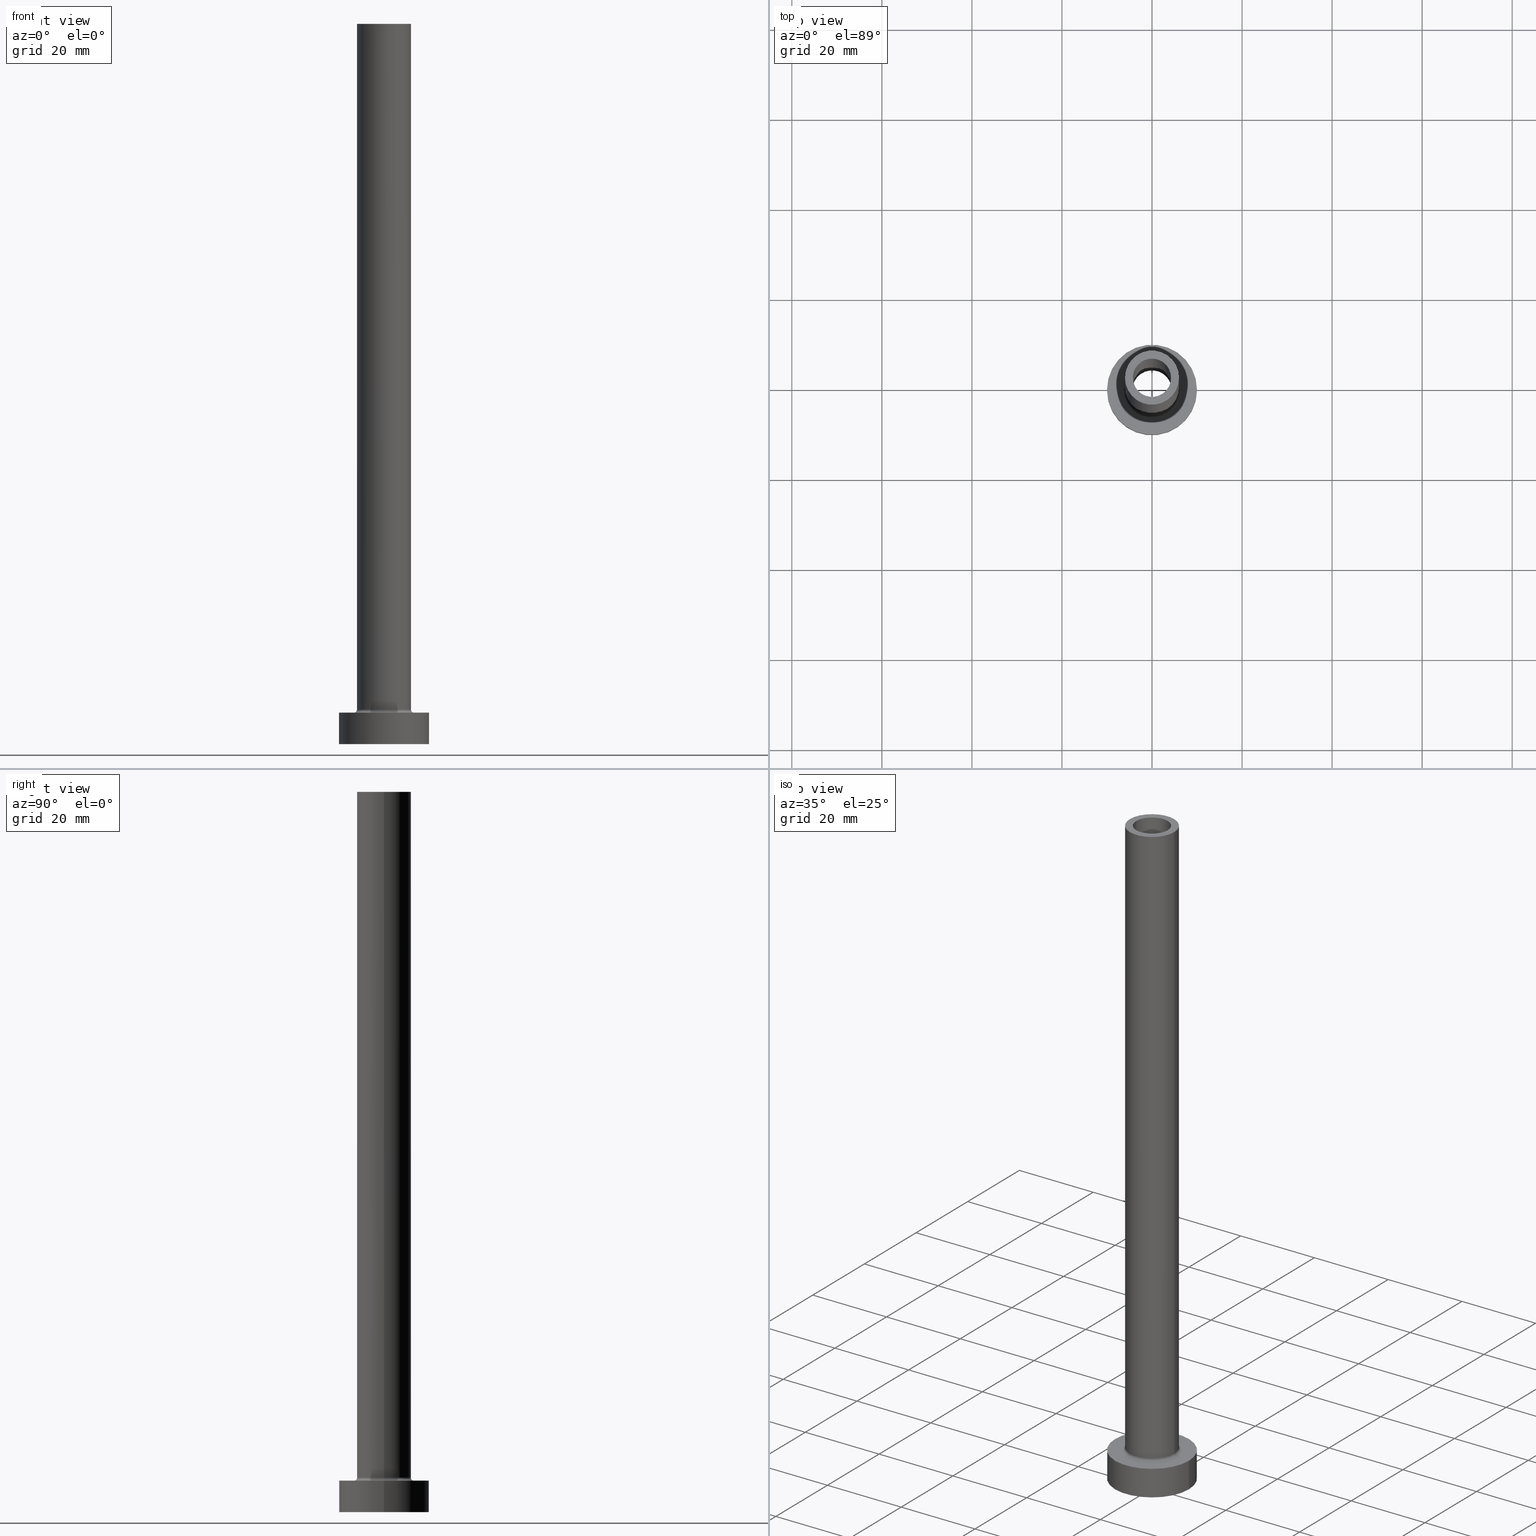
[diagram: canonical four-view strip — front | top / right | iso, engineering-drawing reading convention]
A machine part, canonical four-view strip (front | top / right | iso — engineering-drawing reading convention). The complete STEP part file that produces these views, byte-faithful:
ISO-10303-21;
HEADER;
FILE_DESCRIPTION (( 'STEP AP203' ),
    '1' );
FILE_NAME ('23bb.STEP',
    '2023-02-13T11:58:20',
    ( '' ),
    ( '' ),
    'SwSTEP 2.0',
    'SolidWorks 2019',
    '' );
FILE_SCHEMA (( 'CONFIG_CONTROL_DESIGN' ));
ENDSEC;

DATA;
#1 = DIRECTION ( 'NONE',  ( -0.000000000000000000, -0.000000000000000000, -1.000000000000000000 ) ) ;
#2 = DIRECTION ( 'NONE',  ( 1.000000000000000000, 0.000000000000000000, 0.000000000000000000 ) ) ;
#3 = CARTESIAN_POINT ( 'NONE',  ( 0.000000000000000000, 0.000000000000000000, 160.0000000000000000 ) ) ;
#4 = AXIS2_PLACEMENT_3D ( 'NONE', #316, #354, #39 ) ;
#5 = ADVANCED_FACE ( 'NONE', ( #13, #231 ), #157, .F. ) ;
#6 = CARTESIAN_POINT ( 'NONE',  ( -4.400000000000000355, 0.000000000000000000, 0.000000000000000000 ) ) ;
#7 = VERTEX_POINT ( 'NONE', #459 ) ;
#8 = DIRECTION ( 'NONE',  ( -0.000000000000000000, -0.000000000000000000, -1.000000000000000000 ) ) ;
#9 = ADVANCED_FACE ( 'NONE', ( #32 ), #175, .T. ) ;
#10 = ORIENTED_EDGE ( 'NONE', *, *, #288, .F. ) ;
#11 = ORIENTED_EDGE ( 'NONE', *, *, #288, .T. ) ;
#12 = DIRECTION ( 'NONE',  ( 0.000000000000000000, 0.000000000000000000, -1.000000000000000000 ) ) ;
#13 = FACE_BOUND ( 'NONE', #299, .T. ) ;
#14 =( NAMED_UNIT ( * ) SI_UNIT ( $, .STERADIAN. ) SOLID_ANGLE_UNIT ( ) );
#15 = VECTOR ( 'NONE', #265, 1000.000000000000000 ) ;
#16 = FACE_OUTER_BOUND ( 'NONE', #434, .T. ) ;
#17 = ADVANCED_FACE ( 'NONE', ( #284 ), #116, .T. ) ;
#18 = CARTESIAN_POINT ( 'NONE',  ( 0.000000000000000000, 0.000000000000000000, 7.000000000000000000 ) ) ;
#19 = ORIENTED_EDGE ( 'NONE', *, *, #42, .T. ) ;
#20 = ADVANCED_FACE ( 'NONE', ( #108, #396 ), #104, .T. ) ;
#21 = CARTESIAN_POINT ( 'NONE',  ( 4.400000000000000355, 5.388445916248354013E-16, 115.0000000000000000 ) ) ;
#22 = APPROVAL_ROLE ( '' ) ;
#23 = DIRECTION ( 'NONE',  ( 1.000000000000000000, 0.000000000000000000, 0.000000000000000000 ) ) ;
#24 = EDGE_CURVE ( 'NONE', #227, #41, #65, .T. ) ;
#25 = AXIS2_PLACEMENT_3D ( 'NONE', #18, #162, #307 ) ;
#26 = PERSON_AND_ORGANIZATION_ROLE ( 'classification_officer' ) ;
#27 = DIRECTION ( 'NONE',  ( 0.000000000000000000, 0.000000000000000000, -1.000000000000000000 ) ) ;
#28 = DATE_AND_TIME ( #202, #140 ) ;
#29 = AXIS2_PLACEMENT_3D ( 'NONE', #409, #368, #54 ) ;
#30 = LOCAL_TIME ( 12, 58, 20.00000000000000000, #210 ) ;
#31 = ADVANCED_FACE ( 'NONE', ( #287 ), #455, .F. ) ;
#32 = FACE_OUTER_BOUND ( 'NONE', #362, .T. ) ;
#33 = ORIENTED_EDGE ( 'NONE', *, *, #103, .T. ) ;
#34 = DIRECTION ( 'NONE',  ( -1.000000000000000000, 0.000000000000000000, 0.000000000000000000 ) ) ;
#35 = VERTEX_POINT ( 'NONE', #217 ) ;
#36 = PLANE ( 'NONE',  #130 ) ;
#37 = VERTEX_POINT ( 'NONE', #148 ) ;
#38 = EDGE_CURVE ( 'NONE', #395, #329, #199, .T. ) ;
#39 = DIRECTION ( 'NONE',  ( 1.000000000000000000, 0.000000000000000000, 0.000000000000000000 ) ) ;
#40 = EDGE_CURVE ( 'NONE', #49, #155, #358, .T. ) ;
#41 = VERTEX_POINT ( 'NONE', #423 ) ;
#42 = EDGE_CURVE ( 'NONE', #81, #7, #256, .T. ) ;
#43 = FACE_BOUND ( 'NONE', #188, .T. ) ;
#44 = ORIENTED_EDGE ( 'NONE', *, *, #259, .F. ) ;
#45 = CIRCLE ( 'NONE', #432, 10.00000000000000000 ) ;
#46 = CARTESIAN_POINT ( 'NONE',  ( 10.00000000000000000, 1.224646799147353256E-15, 7.000000000000000000 ) ) ;
#47 = CC_DESIGN_PERSON_AND_ORGANIZATION_ASSIGNMENT ( #61, #165, ( #212 ) ) ;
#48 = DIRECTION ( 'NONE',  ( -0.000000000000000000, -0.000000000000000000, -1.000000000000000000 ) ) ;
#49 = VERTEX_POINT ( 'NONE', #74 ) ;
#50 = CYLINDRICAL_SURFACE ( 'NONE', #83, 6.000000000000000888 ) ;
#51 = CARTESIAN_POINT ( 'NONE',  ( 0.000000000000000000, 0.000000000000000000, 115.0000000000000000 ) ) ;
#52 = ORIENTED_EDGE ( 'NONE', *, *, #413, .T. ) ;
#53 = AXIS2_PLACEMENT_3D ( 'NONE', #323, #457, #2 ) ;
#54 = DIRECTION ( 'NONE',  ( 1.000000000000000000, 0.000000000000000000, -0.000000000000000000 ) ) ;
#55 = EDGE_LOOP ( 'NONE', ( #397, #436 ) ) ;
#56 = DIRECTION ( 'NONE',  ( 0.000000000000000000, 0.000000000000000000, 1.000000000000000000 ) ) ;
#57 = FACE_OUTER_BOUND ( 'NONE', #75, .T. ) ;
#58 = CARTESIAN_POINT ( 'NONE',  ( 0.000000000000000000, 0.000000000000000000, 7.000000000000000000 ) ) ;
#59 =( GEOMETRIC_REPRESENTATION_CONTEXT ( 3 ) GLOBAL_UNCERTAINTY_ASSIGNED_CONTEXT ( ( #340 ) ) GLOBAL_UNIT_ASSIGNED_CONTEXT ( ( #357, #264, #14 ) ) REPRESENTATION_CONTEXT ( 'NONE', 'WORKASPACE' ) );
#60 = DATE_TIME_ROLE ( 'creation_date' ) ;
#61 = PERSON_AND_ORGANIZATION ( #295, #135 ) ;
#62 = EDGE_CURVE ( 'NONE', #326, #119, #333, .T. ) ;
#63 = AXIS2_PLACEMENT_3D ( 'NONE', #51, #346, #350 ) ;
#64 = ORIENTED_EDGE ( 'NONE', *, *, #42, .F. ) ;
#65 = LINE ( 'NONE', #219, #345 ) ;
#66 = ORIENTED_EDGE ( 'NONE', *, *, #297, .T. ) ;
#67 = PRODUCT_RELATED_PRODUCT_CATEGORY ( 'detail', '', ( #172 ) ) ;
#68 = EDGE_CURVE ( 'NONE', #7, #81, #128, .T. ) ;
#69 = DIRECTION ( 'NONE',  ( 0.000000000000000000, 0.000000000000000000, 1.000000000000000000 ) ) ;
#70 = CARTESIAN_POINT ( 'NONE',  ( 0.000000000000000000, 0.000000000000000000, 160.0000000000000000 ) ) ;
#71 = ORIENTED_EDGE ( 'NONE', *, *, #250, .T. ) ;
#72 = EDGE_CURVE ( 'NONE', #318, #49, #211, .T. ) ;
#73 = AXIS2_PLACEMENT_3D ( 'NONE', #191, #87, #149 ) ;
#74 = CARTESIAN_POINT ( 'NONE',  ( 4.250000000000000000, 5.204748896376249713E-16, 160.0000000000000000 ) ) ;
#75 = EDGE_LOOP ( 'NONE', ( #380, #405, #11, #192 ) ) ;
#76 = ORIENTED_EDGE ( 'NONE', *, *, #363, .F. ) ;
#77 = DIRECTION ( 'NONE',  ( 0.000000000000000000, 0.000000000000000000, 1.000000000000000000 ) ) ;
#78 = ORIENTED_EDGE ( 'NONE', *, *, #169, .F. ) ;
#79 = DIRECTION ( 'NONE',  ( 0.000000000000000000, 0.000000000000000000, 1.000000000000000000 ) ) ;
#80 = ADVANCED_BREP_SHAPE_REPRESENTATION ( '23bb', ( #439, #461 ), #59 ) ;
#81 = VERTEX_POINT ( 'NONE', #428 ) ;
#82 = AXIS2_PLACEMENT_3D ( 'NONE', #134, #27, #206 ) ;
#83 = AXIS2_PLACEMENT_3D ( 'NONE', #260, #235, #161 ) ;
#84 = CARTESIAN_POINT ( 'NONE',  ( 0.000000000000000000, 0.000000000000000000, 0.000000000000000000 ) ) ;
#85 = EDGE_LOOP ( 'NONE', ( #115, #254, #52, #10 ) ) ;
#86 = EDGE_LOOP ( 'NONE', ( #444, #71, #268, #44 ) ) ;
#87 = DIRECTION ( 'NONE',  ( 0.000000000000000000, 0.000000000000000000, 1.000000000000000000 ) ) ;
#88 = ORIENTED_EDGE ( 'NONE', *, *, #297, .F. ) ;
#89 = DIRECTION ( 'NONE',  ( -1.000000000000000000, 1.224646799147353454E-16, 0.000000000000000000 ) ) ;
#90 = APPROVAL ( #99, 'NEUR�EN�' ) ;
#91 = EDGE_LOOP ( 'NONE', ( #64, #402, #236, #143 ) ) ;
#92 = PERSON_AND_ORGANIZATION ( #295, #135 ) ;
#93 = AXIS2_PLACEMENT_3D ( 'NONE', #58, #315, #421 ) ;
#94 = DIRECTION ( 'NONE',  ( 1.000000000000000000, 0.000000000000000000, 0.000000000000000000 ) ) ;
#95 = CIRCLE ( 'NONE', #376, 4.400000000000000355 ) ;
#96 = SHAPE_DEFINITION_REPRESENTATION ( #109, #80 ) ;
#97 = CALENDAR_DATE ( 2023, 13, 2 ) ;
#98 = DIRECTION ( 'NONE',  ( 0.000000000000000000, 0.000000000000000000, 1.000000000000000000 ) ) ;
#99 = APPROVAL_STATUS ( 'not_yet_approved' ) ;
#100 = CIRCLE ( 'NONE', #53, 10.00000000000000000 ) ;
#101 = CC_DESIGN_APPROVAL ( #90, ( #335 ) ) ;
#102 = DIRECTION ( 'NONE',  ( 1.000000000000000000, 0.000000000000000000, 0.000000000000000000 ) ) ;
#103 = EDGE_CURVE ( 'NONE', #49, #318, #383, .T. ) ;
#104 = PLANE ( 'NONE',  #424 ) ;
#105 = AXIS2_PLACEMENT_3D ( 'NONE', #194, #121, #404 ) ;
#106 = DIRECTION ( 'NONE',  ( 1.000000000000000000, 0.000000000000000000, -0.000000000000000000 ) ) ;
#107 = DIRECTION ( 'NONE',  ( 0.000000000000000000, 0.000000000000000000, -1.000000000000000000 ) ) ;
#108 = FACE_BOUND ( 'NONE', #437, .T. ) ;
#109 = PRODUCT_DEFINITION_SHAPE ( 'NONE', 'NONE',  #335 ) ;
#110 = ORIENTED_EDGE ( 'NONE', *, *, #382, .F. ) ;
#111 = CARTESIAN_POINT ( 'NONE',  ( 0.000000000000000000, 0.000000000000000000, 7.000000000000000000 ) ) ;
#112 = ORIENTED_EDGE ( 'NONE', *, *, #24, .F. ) ;
#113 = CARTESIAN_POINT ( 'NONE',  ( -4.250000000000000000, 0.000000000000000000, 160.0000000000000000 ) ) ;
#114 = ORIENTED_EDGE ( 'NONE', *, *, #259, .T. ) ;
#115 = ORIENTED_EDGE ( 'NONE', *, *, #382, .T. ) ;
#116 = CYLINDRICAL_SURFACE ( 'NONE', #325, 6.000000000000000888 ) ;
#117 = CIRCLE ( 'NONE', #247, 4.400000000000000355 ) ;
#118 = EDGE_CURVE ( 'NONE', #329, #395, #207, .T. ) ;
#119 = VERTEX_POINT ( 'NONE', #179 ) ;
#120 = DIRECTION ( 'NONE',  ( 1.000000000000000000, 0.000000000000000000, 0.000000000000000000 ) ) ;
#121 = DIRECTION ( 'NONE',  ( 0.000000000000000000, 0.000000000000000000, -1.000000000000000000 ) ) ;
#122 = LOCAL_TIME ( 12, 58, 20.00000000000000000, #378 ) ;
#123 = CARTESIAN_POINT ( 'NONE',  ( -4.400000000000000355, 0.000000000000000000, 127.4450793488832403 ) ) ;
#124 = ORIENTED_EDGE ( 'NONE', *, *, #169, .T. ) ;
#125 = DIRECTION ( 'NONE',  ( 1.224646799147353207E-16, 1.000000000000000000, -0.000000000000000000 ) ) ;
#126 = DATE_AND_TIME ( #171, #30 ) ;
#127 = FACE_OUTER_BOUND ( 'NONE', #85, .T. ) ;
#128 = CIRCLE ( 'NONE', #181, 6.000000000000000888 ) ;
#129 = DIRECTION ( 'NONE',  ( 1.000000000000000000, 0.000000000000000000, 0.000000000000000000 ) ) ;
#130 = AXIS2_PLACEMENT_3D ( 'NONE', #384, #141, #106 ) ;
#131 = CALENDAR_DATE ( 2023, 13, 2 ) ;
#132 = FACE_OUTER_BOUND ( 'NONE', #91, .T. ) ;
#133 = CALENDAR_DATE ( 2023, 13, 2 ) ;
#134 = CARTESIAN_POINT ( 'NONE',  ( 0.000000000000000000, 0.000000000000000000, 127.4450793488832403 ) ) ;
#135 = ORGANIZATION ( 'NEUR�EN�', 'NEUR�EN�', '' ) ;
#136 = CYLINDRICAL_SURFACE ( 'NONE', #200, 10.00000000000000000 ) ;
#137 = DIRECTION ( 'NONE',  ( 1.000000000000000000, 0.000000000000000000, 0.000000000000000000 ) ) ;
#138 = EDGE_CURVE ( 'NONE', #290, #41, #100, .T. ) ;
#139 = CIRCLE ( 'NONE', #257, 4.400000000000000355 ) ;
#140 = LOCAL_TIME ( 12, 58, 20.00000000000000000, #276 ) ;
#141 = DIRECTION ( 'NONE',  ( 0.000000000000000000, 0.000000000000000000, 1.000000000000000000 ) ) ;
#142 = CC_DESIGN_PERSON_AND_ORGANIZATION_ASSIGNMENT ( #445, #344, ( #212 ) ) ;
#143 = ORIENTED_EDGE ( 'NONE', *, *, #156, .F. ) ;
#144 = EDGE_CURVE ( 'NONE', #318, #220, #289, .T. ) ;
#145 = DIRECTION ( 'NONE',  ( 1.000000000000000000, 0.000000000000000000, 0.000000000000000000 ) ) ;
#146 = ORIENTED_EDGE ( 'NONE', *, *, #62, .F. ) ;
#147 = AXIS2_PLACEMENT_3D ( 'NONE', #186, #77, #426 ) ;
#148 = CARTESIAN_POINT ( 'NONE',  ( -10.00000000000000000, 0.000000000000000000, 7.000000000000000000 ) ) ;
#149 = DIRECTION ( 'NONE',  ( 1.000000000000000000, 0.000000000000000000, 0.000000000000000000 ) ) ;
#150 = ORIENTED_EDGE ( 'NONE', *, *, #174, .T. ) ;
#151 = ORIENTED_EDGE ( 'NONE', *, *, #144, .F. ) ;
#152 = ORIENTED_EDGE ( 'NONE', *, *, #103, .F. ) ;
#153 = CARTESIAN_POINT ( 'NONE',  ( -6.700000000000001066, 8.205133554287267548E-16, 7.700000000000012612 ) ) ;
#154 = APPROVAL ( #452, 'NEUR�EN�' ) ;
#155 = VERTEX_POINT ( 'NONE', #393 ) ;
#156 = EDGE_CURVE ( 'NONE', #7, #119, #189, .T. ) ;
#157 = PLANE ( 'NONE',  #63 ) ;
#158 = ORIENTED_EDGE ( 'NONE', *, *, #68, .F. ) ;
#159 = AXIS2_PLACEMENT_3D ( 'NONE', #438, #298, #94 ) ;
#160 = APPROVAL_PERSON_ORGANIZATION ( #239, #369, #415 ) ;
#161 = DIRECTION ( 'NONE',  ( -1.000000000000000000, 0.000000000000000000, 0.000000000000000000 ) ) ;
#162 = DIRECTION ( 'NONE',  ( -0.000000000000000000, -0.000000000000000000, -1.000000000000000000 ) ) ;
#163 = DATE_TIME_ROLE ( 'classification_date' ) ;
#164 = DIRECTION ( 'NONE',  ( -0.000000000000000000, -0.000000000000000000, -1.000000000000000000 ) ) ;
#165 = PERSON_AND_ORGANIZATION_ROLE ( 'creator' ) ;
#166 = CIRCLE ( 'NONE', #343, 10.00000000000000000 ) ;
#167 = PERSON_AND_ORGANIZATION_ROLE ( 'creator' ) ;
#168 = APPLICATION_CONTEXT ( 'configuration controlled 3d designs of mechanical parts and assemblies' ) ;
#169 = EDGE_CURVE ( 'NONE', #37, #290, #317, .T. ) ;
#170 = APPROVAL_DATE_TIME ( #28, #369 ) ;
#171 = CALENDAR_DATE ( 2023, 13, 2 ) ;
#172 = PRODUCT ( '23bb', '23bb', '', ( #372 ) ) ;
#173 = DIRECTION ( 'NONE',  ( 0.000000000000000000, 0.000000000000000000, 1.000000000000000000 ) ) ;
#174 = EDGE_CURVE ( 'NONE', #41, #290, #166, .T. ) ;
#175 = CYLINDRICAL_SURFACE ( 'NONE', #403, 10.00000000000000000 ) ;
#176 = DIRECTION ( 'NONE',  ( 1.000000000000000000, 0.000000000000000000, 0.000000000000000000 ) ) ;
#177 = EDGE_LOOP ( 'NONE', ( #330, #320, #150, #78 ) ) ;
#178 = DIRECTION ( 'NONE',  ( -0.000000000000000000, -0.000000000000000000, -1.000000000000000000 ) ) ;
#179 = CARTESIAN_POINT ( 'NONE',  ( 6.700000000000001066, 0.000000000000000000, 7.000000000000006217 ) ) ;
#180 = DIRECTION ( 'NONE',  ( -0.000000000000000000, -0.000000000000000000, -1.000000000000000000 ) ) ;
#181 = AXIS2_PLACEMENT_3D ( 'NONE', #351, #321, #224 ) ;
#182 = CIRCLE ( 'NONE', #334, 4.250000000000000000 ) ;
#183 = CARTESIAN_POINT ( 'NONE',  ( 0.000000000000000000, 0.000000000000000000, 7.000000000000000000 ) ) ;
#184 = EDGE_CURVE ( 'NONE', #228, #306, #117, .T. ) ;
#185 = FACE_OUTER_BOUND ( 'NONE', #177, .T. ) ;
#186 = CARTESIAN_POINT ( 'NONE',  ( 0.000000000000000000, 0.000000000000000000, 160.0000000000000000 ) ) ;
#187 = DIRECTION ( 'NONE',  ( 1.000000000000000000, 0.000000000000000000, 0.000000000000000000 ) ) ;
#188 = EDGE_LOOP ( 'NONE', ( #266, #386 ) ) ;
#189 = CIRCLE ( 'NONE', #448, 0.7000000000000000666 ) ;
#190 = EDGE_CURVE ( 'NONE', #227, #37, #45, .T. ) ;
#191 = CARTESIAN_POINT ( 'NONE',  ( 0.000000000000000000, 0.000000000000000000, 115.0000000000000000 ) ) ;
#192 = ORIENTED_EDGE ( 'NONE', *, *, #184, .T. ) ;
#193 = ORIENTED_EDGE ( 'NONE', *, *, #285, .F. ) ;
#194 = CARTESIAN_POINT ( 'NONE',  ( 0.000000000000000000, 0.000000000000000000, 127.4450793488832403 ) ) ;
#195 = ORIENTED_EDGE ( 'NONE', *, *, #72, .F. ) ;
#196 = ORIENTED_EDGE ( 'NONE', *, *, #62, .T. ) ;
#197 = PLANE ( 'NONE',  #29 ) ;
#198 = ORIENTED_EDGE ( 'NONE', *, *, #38, .F. ) ;
#199 = CIRCLE ( 'NONE', #147, 6.000000000000000888 ) ;
#200 = AXIS2_PLACEMENT_3D ( 'NONE', #183, #458, #388 ) ;
#201 = ADVANCED_FACE ( 'NONE', ( #16 ), #309, .F. ) ;
#202 = CALENDAR_DATE ( 2023, 13, 2 ) ;
#203 = DIRECTION ( 'NONE',  ( 1.000000000000000000, 0.000000000000000000, 0.000000000000000000 ) ) ;
#204 = ORIENTED_EDGE ( 'NONE', *, *, #144, .T. ) ;
#205 = CARTESIAN_POINT ( 'NONE',  ( 0.000000000000000000, 0.000000000000000000, 0.000000000000000000 ) ) ;
#206 = DIRECTION ( 'NONE',  ( -1.000000000000000000, 0.000000000000000000, 0.000000000000000000 ) ) ;
#207 = CIRCLE ( 'NONE', #4, 6.000000000000000888 ) ;
#208 = DATE_AND_TIME ( #133, #222 ) ;
#209 = CARTESIAN_POINT ( 'NONE',  ( -6.000000000000000888, 0.000000000000000000, 160.0000000000000000 ) ) ;
#210 = COORDINATED_UNIVERSAL_TIME_OFFSET ( 1, 0, .AHEAD. ) ;
#211 = CIRCLE ( 'NONE', #441, 4.250000000000000000 ) ;
#212 = PRODUCT_DEFINITION_FORMATION_WITH_SPECIFIED_SOURCE ( 'LIBOVOLN�', '', #172, .NOT_KNOWN. ) ;
#213 = DIRECTION ( 'NONE',  ( 1.000000000000000000, 0.000000000000000000, -0.000000000000000000 ) ) ;
#214 = CARTESIAN_POINT ( 'NONE',  ( 0.000000000000000000, 0.000000000000000000, 7.000000000000000000 ) ) ;
#215 = DIRECTION ( 'NONE',  ( 0.000000000000000000, -1.000000000000000000, 0.000000000000000000 ) ) ;
#216 = ORIENTED_EDGE ( 'NONE', *, *, #72, .T. ) ;
#217 = CARTESIAN_POINT ( 'NONE',  ( -4.400000000000000355, 0.000000000000000000, 115.0000000000000000 ) ) ;
#218 = CARTESIAN_POINT ( 'NONE',  ( 4.250000000000000000, 5.204748896376249713E-16, 160.0000000000000000 ) ) ;
#219 = CARTESIAN_POINT ( 'NONE',  ( 10.00000000000000000, 1.224646799147353256E-15, 7.000000000000000000 ) ) ;
#220 = VERTEX_POINT ( 'NONE', #226 ) ;
#221 = AXIS2_PLACEMENT_3D ( 'NONE', #267, #12, #296 ) ;
#222 = LOCAL_TIME ( 12, 58, 20.00000000000000000, #245 ) ;
#223 = CARTESIAN_POINT ( 'NONE',  ( 6.700000000000001066, 0.000000000000000000, 7.700000000000012612 ) ) ;
#224 = DIRECTION ( 'NONE',  ( 1.000000000000000000, 0.000000000000000000, 0.000000000000000000 ) ) ;
#225 = ADVANCED_FACE ( 'NONE', ( #127 ), #336, .F. ) ;
#226 = CARTESIAN_POINT ( 'NONE',  ( -4.250000000000000000, 0.000000000000000000, 115.0000000000000000 ) ) ;
#227 = VERTEX_POINT ( 'NONE', #46 ) ;
#228 = VERTEX_POINT ( 'NONE', #6 ) ;
#229 = CIRCLE ( 'NONE', #25, 6.700000000000001066 ) ;
#230 = CARTESIAN_POINT ( 'NONE',  ( 0.000000000000000000, 0.000000000000000000, 0.000000000000000000 ) ) ;
#231 = FACE_OUTER_BOUND ( 'NONE', #394, .T. ) ;
#232 = CC_DESIGN_PERSON_AND_ORGANIZATION_ASSIGNMENT ( #271, #26, ( #280 ) ) ;
#233 = CARTESIAN_POINT ( 'NONE',  ( 6.000000000000000888, 7.347880794884120722E-16, 160.0000000000000000 ) ) ;
#234 = EDGE_LOOP ( 'NONE', ( #401, #198, #114, #19 ) ) ;
#235 = DIRECTION ( 'NONE',  ( -0.000000000000000000, -0.000000000000000000, -1.000000000000000000 ) ) ;
#236 = ORIENTED_EDGE ( 'NONE', *, *, #313, .F. ) ;
#237 = ADVANCED_FACE ( 'NONE', ( #328 ), #50, .T. ) ;
#238 = CIRCLE ( 'NONE', #361, 0.7000000000000000666 ) ;
#239 = PERSON_AND_ORGANIZATION ( #295, #135 ) ;
#240 = FACE_OUTER_BOUND ( 'NONE', #347, .T. ) ;
#241 = CC_DESIGN_DATE_AND_TIME_ASSIGNMENT ( #377, #163, ( #280 ) ) ;
#242 = PERSON_AND_ORGANIZATION ( #295, #135 ) ;
#243 = CLOSED_SHELL ( 'NONE', ( #31, #225, #356, #17, #422, #9, #417, #308, #237, #20, #201, #338, #5, #273 ) ) ;
#244 = COORDINATED_UNIVERSAL_TIME_OFFSET ( 1, 0, .AHEAD. ) ;
#245 = COORDINATED_UNIVERSAL_TIME_OFFSET ( 1, 0, .AHEAD. ) ;
#246 = CARTESIAN_POINT ( 'NONE',  ( 0.000000000000000000, 0.000000000000000000, 7.700000000000012612 ) ) ;
#247 = AXIS2_PLACEMENT_3D ( 'NONE', #230, #48, #120 ) ;
#248 = CARTESIAN_POINT ( 'NONE',  ( 0.000000000000000000, 0.000000000000000000, 7.700000000000012612 ) ) ;
#249 = EDGE_LOOP ( 'NONE', ( #367, #430 ) ) ;
#250 = EDGE_CURVE ( 'NONE', #329, #7, #331, .T. ) ;
#251 = ORIENTED_EDGE ( 'NONE', *, *, #156, .T. ) ;
#252 = CARTESIAN_POINT ( 'NONE',  ( 0.000000000000000000, 0.000000000000000000, 160.0000000000000000 ) ) ;
#253 = ORIENTED_EDGE ( 'NONE', *, *, #40, .T. ) ;
#254 = ORIENTED_EDGE ( 'NONE', *, *, #332, .T. ) ;
#255 = DIRECTION ( 'NONE',  ( 0.000000000000000000, 0.000000000000000000, -1.000000000000000000 ) ) ;
#256 = CIRCLE ( 'NONE', #412, 6.000000000000000888 ) ;
#257 = AXIS2_PLACEMENT_3D ( 'NONE', #451, #275, #203 ) ;
#258 = APPLICATION_CONTEXT ( 'configuration controlled 3d designs of mechanical parts and assemblies' ) ;
#259 = EDGE_CURVE ( 'NONE', #395, #81, #324, .T. ) ;
#260 = CARTESIAN_POINT ( 'NONE',  ( 0.000000000000000000, 0.000000000000000000, 160.0000000000000000 ) ) ;
#261 = EDGE_LOOP ( 'NONE', ( #365, #196 ) ) ;
#262 = CARTESIAN_POINT ( 'NONE',  ( 4.400000000000000355, 5.388445916248354013E-16, 0.000000000000000000 ) ) ;
#263 = VECTOR ( 'NONE', #8, 1000.000000000000000 ) ;
#264 =( NAMED_UNIT ( * ) PLANE_ANGLE_UNIT ( ) SI_UNIT ( $, .RADIAN. ) );
#265 = DIRECTION ( 'NONE',  ( 0.000000000000000000, 0.000000000000000000, -1.000000000000000000 ) ) ;
#266 = ORIENTED_EDGE ( 'NONE', *, *, #184, .F. ) ;
#267 = CARTESIAN_POINT ( 'NONE',  ( 0.000000000000000000, 0.000000000000000000, 160.0000000000000000 ) ) ;
#268 = ORIENTED_EDGE ( 'NONE', *, *, #68, .T. ) ;
#269 = CARTESIAN_POINT ( 'NONE',  ( -4.250000000000000000, 0.000000000000000000, 160.0000000000000000 ) ) ;
#270 = EDGE_LOOP ( 'NONE', ( #440, #389 ) ) ;
#271 = PERSON_AND_ORGANIZATION ( #295, #135 ) ;
#272 = FACE_BOUND ( 'NONE', #261, .T. ) ;
#273 = ADVANCED_FACE ( 'NONE', ( #240 ), #400, .F. ) ;
#274 = APPROVAL_STATUS ( 'not_yet_approved' ) ;
#275 = DIRECTION ( 'NONE',  ( 0.000000000000000000, 0.000000000000000000, 1.000000000000000000 ) ) ;
#276 = COORDINATED_UNIVERSAL_TIME_OFFSET ( 1, 0, .AHEAD. ) ;
#277 = LINE ( 'NONE', #373, #460 ) ;
#278 = CIRCLE ( 'NONE', #73, 4.250000000000000000 ) ;
#279 = APPLICATION_PROTOCOL_DEFINITION ( 'international standard', 'config_control_design', 1994, #258 ) ;
#280 = SECURITY_CLASSIFICATION ( '', '', #310 ) ;
#281 = CARTESIAN_POINT ( 'NONE',  ( 0.000000000000000000, 0.000000000000000000, 115.0000000000000000 ) ) ;
#282 = DIRECTION ( 'NONE',  ( 0.000000000000000000, 0.000000000000000000, 1.000000000000000000 ) ) ;
#283 = AXIS2_PLACEMENT_3D ( 'NONE', #246, #282, #23 ) ;
#284 = FACE_OUTER_BOUND ( 'NONE', #86, .T. ) ;
#285 = EDGE_CURVE ( 'NONE', #81, #326, #238, .T. ) ;
#286 = ORIENTED_EDGE ( 'NONE', *, *, #398, .F. ) ;
#287 = FACE_OUTER_BOUND ( 'NONE', #327, .T. ) ;
#288 = EDGE_CURVE ( 'NONE', #35, #228, #442, .T. ) ;
#289 = LINE ( 'NONE', #113, #352 ) ;
#290 = VERTEX_POINT ( 'NONE', #407 ) ;
#291 = CARTESIAN_POINT ( 'NONE',  ( -10.00000000000000000, 0.000000000000000000, 7.000000000000000000 ) ) ;
#292 = TOROIDAL_SURFACE ( 'NONE', #283, 6.700000000000001066, 0.6999999999999999556 ) ;
#293 = ORIENTED_EDGE ( 'NONE', *, *, #398, .T. ) ;
#294 = CC_DESIGN_APPROVAL ( #154, ( #280 ) ) ;
#295 = PERSON ( 'NEUR�EN�', 'NEUR�EN�', 'NEUR�EN�', ('NEUR�EN�'), ('NEUR�EN�'), ('NEUR�EN�') ) ;
#296 = DIRECTION ( 'NONE',  ( -1.000000000000000000, 0.000000000000000000, 0.000000000000000000 ) ) ;
#297 = EDGE_CURVE ( 'NONE', #155, #220, #278, .T. ) ;
#298 = DIRECTION ( 'NONE',  ( 0.000000000000000000, 0.000000000000000000, 1.000000000000000000 ) ) ;
#299 = EDGE_LOOP ( 'NONE', ( #293, #66 ) ) ;
#300 = ORIENTED_EDGE ( 'NONE', *, *, #138, .T. ) ;
#301 = CARTESIAN_POINT ( 'NONE',  ( 0.000000000000000000, 0.000000000000000000, 7.000000000000000000 ) ) ;
#302 = AXIS2_PLACEMENT_3D ( 'NONE', #252, #390, #176 ) ;
#303 = ORIENTED_EDGE ( 'NONE', *, *, #371, .F. ) ;
#304 = APPROVAL_PERSON_ORGANIZATION ( #450, #90, #22 ) ;
#305 = DIRECTION ( 'NONE',  ( -0.000000000000000000, -0.000000000000000000, -1.000000000000000000 ) ) ;
#306 = VERTEX_POINT ( 'NONE', #262 ) ;
#307 = DIRECTION ( 'NONE',  ( 1.000000000000000000, 0.000000000000000000, 0.000000000000000000 ) ) ;
#308 = ADVANCED_FACE ( 'NONE', ( #43, #366 ), #197, .F. ) ;
#309 = TOROIDAL_SURFACE ( 'NONE', #159, 6.700000000000001066, 0.6999999999999999556 ) ;
#310 = SECURITY_CLASSIFICATION_LEVEL ( 'unclassified' ) ;
#311 = DIRECTION ( 'NONE',  ( 0.000000000000000000, 0.000000000000000000, -1.000000000000000000 ) ) ;
#312 = VECTOR ( 'NONE', #433, 1000.000000000000000 ) ;
#313 = EDGE_CURVE ( 'NONE', #119, #326, #229, .T. ) ;
#314 = APPROVAL_PERSON_ORGANIZATION ( #370, #154, #337 ) ;
#315 = DIRECTION ( 'NONE',  ( 0.000000000000000000, 0.000000000000000000, 1.000000000000000000 ) ) ;
#316 = CARTESIAN_POINT ( 'NONE',  ( 0.000000000000000000, 0.000000000000000000, 160.0000000000000000 ) ) ;
#317 = LINE ( 'NONE', #291, #312 ) ;
#318 = VERTEX_POINT ( 'NONE', #269 ) ;
#319 = AXIS2_PLACEMENT_3D ( 'NONE', #111, #180, #349 ) ;
#320 = ORIENTED_EDGE ( 'NONE', *, *, #24, .T. ) ;
#321 = DIRECTION ( 'NONE',  ( 0.000000000000000000, 0.000000000000000000, 1.000000000000000000 ) ) ;
#322 = DIRECTION ( 'NONE',  ( -1.000000000000000000, 0.000000000000000000, 0.000000000000000000 ) ) ;
#323 = CARTESIAN_POINT ( 'NONE',  ( 0.000000000000000000, 0.000000000000000000, 0.000000000000000000 ) ) ;
#324 = LINE ( 'NONE', #360, #263 ) ;
#325 = AXIS2_PLACEMENT_3D ( 'NONE', #427, #178, #322 ) ;
#326 = VERTEX_POINT ( 'NONE', #411 ) ;
#327 = EDGE_LOOP ( 'NONE', ( #216, #253, #286, #151 ) ) ;
#328 = FACE_OUTER_BOUND ( 'NONE', #234, .T. ) ;
#329 = VERTEX_POINT ( 'NONE', #449 ) ;
#330 = ORIENTED_EDGE ( 'NONE', *, *, #190, .F. ) ;
#331 = LINE ( 'NONE', #233, #418 ) ;
#332 = EDGE_CURVE ( 'NONE', #408, #306, #277, .T. ) ;
#333 = CIRCLE ( 'NONE', #319, 6.700000000000001066 ) ;
#334 = AXIS2_PLACEMENT_3D ( 'NONE', #281, #420, #102 ) ;
#335 = PRODUCT_DEFINITION ( 'NEZN�M�', '', #212, #414 ) ;
#336 = CYLINDRICAL_SURFACE ( 'NONE', #105, 4.400000000000000355 ) ;
#337 = APPROVAL_ROLE ( '' ) ;
#338 = ADVANCED_FACE ( 'NONE', ( #57 ), #453, .F. ) ;
#339 = DIRECTION ( 'NONE',  ( 1.000000000000000000, 0.000000000000000000, 0.000000000000000000 ) ) ;
#340 = UNCERTAINTY_MEASURE_WITH_UNIT (LENGTH_MEASURE( 1.000000000000000082E-05 ), #357, 'distance_accuracy_value', 'NONE');
#341 = PERSON_AND_ORGANIZATION_ROLE ( 'design_owner' ) ;
#342 = CIRCLE ( 'NONE', #93, 10.00000000000000000 ) ;
#343 = AXIS2_PLACEMENT_3D ( 'NONE', #84, #79, #187 ) ;
#344 = PERSON_AND_ORGANIZATION_ROLE ( 'design_supplier' ) ;
#345 = VECTOR ( 'NONE', #1, 1000.000000000000000 ) ;
#346 = DIRECTION ( 'NONE',  ( 0.000000000000000000, 0.000000000000000000, 1.000000000000000000 ) ) ;
#347 = EDGE_LOOP ( 'NONE', ( #429, #33, #204, #88 ) ) ;
#348 = DIRECTION ( 'NONE',  ( 0.000000000000000000, 0.000000000000000000, -1.000000000000000000 ) ) ;
#349 = DIRECTION ( 'NONE',  ( 1.000000000000000000, 0.000000000000000000, 0.000000000000000000 ) ) ;
#350 = DIRECTION ( 'NONE',  ( 1.000000000000000000, 0.000000000000000000, -0.000000000000000000 ) ) ;
#351 = CARTESIAN_POINT ( 'NONE',  ( 0.000000000000000000, 0.000000000000000000, 7.700000000000012612 ) ) ;
#352 = VECTOR ( 'NONE', #255, 1000.000000000000000 ) ;
#353 = FACE_OUTER_BOUND ( 'NONE', #270, .T. ) ;
#354 = DIRECTION ( 'NONE',  ( 0.000000000000000000, 0.000000000000000000, 1.000000000000000000 ) ) ;
#355 = DIRECTION ( 'NONE',  ( 0.000000000000000000, 0.000000000000000000, -1.000000000000000000 ) ) ;
#356 = ADVANCED_FACE ( 'NONE', ( #132 ), #292, .F. ) ;
#357 =( LENGTH_UNIT ( ) NAMED_UNIT ( * ) SI_UNIT ( .MILLI., .METRE. ) );
#358 = LINE ( 'NONE', #218, #375 ) ;
#359 = CC_DESIGN_DATE_AND_TIME_ASSIGNMENT ( #416, #60, ( #335 ) ) ;
#360 = CARTESIAN_POINT ( 'NONE',  ( -6.000000000000000888, 0.000000000000000000, 160.0000000000000000 ) ) ;
#361 = AXIS2_PLACEMENT_3D ( 'NONE', #153, #125, #89 ) ;
#362 = EDGE_LOOP ( 'NONE', ( #112, #76, #124, #300 ) ) ;
#363 = EDGE_CURVE ( 'NONE', #37, #227, #342, .T. ) ;
#364 = DIRECTION ( 'NONE',  ( 1.000000000000000000, 0.000000000000000000, 0.000000000000000000 ) ) ;
#365 = ORIENTED_EDGE ( 'NONE', *, *, #313, .T. ) ;
#366 = FACE_OUTER_BOUND ( 'NONE', #249, .T. ) ;
#367 = ORIENTED_EDGE ( 'NONE', *, *, #138, .F. ) ;
#368 = DIRECTION ( 'NONE',  ( 0.000000000000000000, 0.000000000000000000, 1.000000000000000000 ) ) ;
#369 = APPROVAL ( #274, 'NEUR�EN�' ) ;
#370 = PERSON_AND_ORGANIZATION ( #295, #135 ) ;
#371 = EDGE_CURVE ( 'NONE', #408, #35, #139, .T. ) ;
#372 = MECHANICAL_CONTEXT ( 'NONE', #168, 'mechanical' ) ;
#373 = CARTESIAN_POINT ( 'NONE',  ( 4.400000000000000355, 5.388445916248354013E-16, 127.4450793488832403 ) ) ;
#374 = DIRECTION ( 'NONE',  ( 1.000000000000000000, 0.000000000000000000, 0.000000000000000000 ) ) ;
#375 = VECTOR ( 'NONE', #107, 1000.000000000000000 ) ;
#376 = AXIS2_PLACEMENT_3D ( 'NONE', #454, #98, #339 ) ;
#377 = DATE_AND_TIME ( #97, #392 ) ;
#378 = COORDINATED_UNIVERSAL_TIME_OFFSET ( 1, 0, .AHEAD. ) ;
#379 = CARTESIAN_POINT ( 'NONE',  ( 0.000000000000000000, 0.000000000000000000, 0.000000000000000000 ) ) ;
#380 = ORIENTED_EDGE ( 'NONE', *, *, #332, .F. ) ;
#381 = CARTESIAN_POINT ( 'NONE',  ( 0.000000000000000000, 0.000000000000000000, 160.0000000000000000 ) ) ;
#382 = EDGE_CURVE ( 'NONE', #35, #408, #95, .T. ) ;
#383 = CIRCLE ( 'NONE', #302, 4.250000000000000000 ) ;
#384 = CARTESIAN_POINT ( 'NONE',  ( 0.000000000000000000, 0.000000000000000000, 7.000000000000000000 ) ) ;
#385 = DIRECTION ( 'NONE',  ( 0.000000000000000000, 0.000000000000000000, 1.000000000000000000 ) ) ;
#386 = ORIENTED_EDGE ( 'NONE', *, *, #413, .F. ) ;
#387 = CC_DESIGN_PERSON_AND_ORGANIZATION_ASSIGNMENT ( #92, #341, ( #172 ) ) ;
#388 = DIRECTION ( 'NONE',  ( -1.000000000000000000, 0.000000000000000000, 0.000000000000000000 ) ) ;
#389 = ORIENTED_EDGE ( 'NONE', *, *, #190, .T. ) ;
#390 = DIRECTION ( 'NONE',  ( 0.000000000000000000, 0.000000000000000000, 1.000000000000000000 ) ) ;
#391 = AXIS2_PLACEMENT_3D ( 'NONE', #381, #348, #34 ) ;
#392 = LOCAL_TIME ( 12, 58, 20.00000000000000000, #244 ) ;
#393 = CARTESIAN_POINT ( 'NONE',  ( 4.250000000000000000, 5.204748896376249713E-16, 115.0000000000000000 ) ) ;
#394 = EDGE_LOOP ( 'NONE', ( #110, #303 ) ) ;
#395 = VERTEX_POINT ( 'NONE', #209 ) ;
#396 = FACE_OUTER_BOUND ( 'NONE', #55, .T. ) ;
#397 = ORIENTED_EDGE ( 'NONE', *, *, #38, .T. ) ;
#398 = EDGE_CURVE ( 'NONE', #220, #155, #182, .T. ) ;
#399 = APPLICATION_PROTOCOL_DEFINITION ( 'international standard', 'config_control_design', 1994, #168 ) ;
#400 = CYLINDRICAL_SURFACE ( 'NONE', #221, 4.250000000000000000 ) ;
#401 = ORIENTED_EDGE ( 'NONE', *, *, #250, .F. ) ;
#402 = ORIENTED_EDGE ( 'NONE', *, *, #285, .T. ) ;
#403 = AXIS2_PLACEMENT_3D ( 'NONE', #214, #456, #431 ) ;
#404 = DIRECTION ( 'NONE',  ( -1.000000000000000000, 0.000000000000000000, 0.000000000000000000 ) ) ;
#405 = ORIENTED_EDGE ( 'NONE', *, *, #371, .T. ) ;
#406 = CIRCLE ( 'NONE', #419, 4.400000000000000355 ) ;
#407 = CARTESIAN_POINT ( 'NONE',  ( -10.00000000000000000, 0.000000000000000000, 0.000000000000000000 ) ) ;
#408 = VERTEX_POINT ( 'NONE', #21 ) ;
#409 = CARTESIAN_POINT ( 'NONE',  ( 0.000000000000000000, 0.000000000000000000, 0.000000000000000000 ) ) ;
#410 = APPROVAL_DATE_TIME ( #208, #90 ) ;
#411 = CARTESIAN_POINT ( 'NONE',  ( -6.700000000000001066, 8.205133554287267548E-16, 7.000000000000006217 ) ) ;
#412 = AXIS2_PLACEMENT_3D ( 'NONE', #248, #69, #145 ) ;
#413 = EDGE_CURVE ( 'NONE', #306, #228, #406, .T. ) ;
#414 = DESIGN_CONTEXT ( 'detailed design', #258, 'design' ) ;
#415 = APPROVAL_ROLE ( '' ) ;
#416 = DATE_AND_TIME ( #131, #122 ) ;
#417 = ADVANCED_FACE ( 'NONE', ( #272, #353 ), #36, .T. ) ;
#418 = VECTOR ( 'NONE', #305, 1000.000000000000000 ) ;
#419 = AXIS2_PLACEMENT_3D ( 'NONE', #379, #164, #129 ) ;
#420 = DIRECTION ( 'NONE',  ( 0.000000000000000000, 0.000000000000000000, 1.000000000000000000 ) ) ;
#421 = DIRECTION ( 'NONE',  ( 1.000000000000000000, 0.000000000000000000, 0.000000000000000000 ) ) ;
#422 = ADVANCED_FACE ( 'NONE', ( #185 ), #136, .T. ) ;
#423 = CARTESIAN_POINT ( 'NONE',  ( 10.00000000000000000, 1.224646799147353256E-15, 0.000000000000000000 ) ) ;
#424 = AXIS2_PLACEMENT_3D ( 'NONE', #70, #173, #213 ) ;
#425 = CC_DESIGN_APPROVAL ( #369, ( #212 ) ) ;
#426 = DIRECTION ( 'NONE',  ( 1.000000000000000000, 0.000000000000000000, 0.000000000000000000 ) ) ;
#427 = CARTESIAN_POINT ( 'NONE',  ( 0.000000000000000000, 0.000000000000000000, 160.0000000000000000 ) ) ;
#428 = CARTESIAN_POINT ( 'NONE',  ( -6.000000000000000888, 0.000000000000000000, 7.700000000000012612 ) ) ;
#429 = ORIENTED_EDGE ( 'NONE', *, *, #40, .F. ) ;
#430 = ORIENTED_EDGE ( 'NONE', *, *, #174, .F. ) ;
#431 = DIRECTION ( 'NONE',  ( -1.000000000000000000, 0.000000000000000000, 0.000000000000000000 ) ) ;
#432 = AXIS2_PLACEMENT_3D ( 'NONE', #301, #435, #364 ) ;
#433 = DIRECTION ( 'NONE',  ( -0.000000000000000000, -0.000000000000000000, -1.000000000000000000 ) ) ;
#434 = EDGE_LOOP ( 'NONE', ( #193, #158, #251, #146 ) ) ;
#435 = DIRECTION ( 'NONE',  ( 0.000000000000000000, 0.000000000000000000, 1.000000000000000000 ) ) ;
#436 = ORIENTED_EDGE ( 'NONE', *, *, #118, .T. ) ;
#437 = EDGE_LOOP ( 'NONE', ( #195, #152 ) ) ;
#438 = CARTESIAN_POINT ( 'NONE',  ( 0.000000000000000000, 0.000000000000000000, 7.700000000000012612 ) ) ;
#439 = MANIFOLD_SOLID_BREP ( 'Odebrat vysunut�m4', #243 ) ;
#440 = ORIENTED_EDGE ( 'NONE', *, *, #363, .T. ) ;
#441 = AXIS2_PLACEMENT_3D ( 'NONE', #3, #385, #137 ) ;
#442 = LINE ( 'NONE', #123, #15 ) ;
#443 = CC_DESIGN_SECURITY_CLASSIFICATION ( #280, ( #212 ) ) ;
#444 = ORIENTED_EDGE ( 'NONE', *, *, #118, .F. ) ;
#445 = PERSON_AND_ORGANIZATION ( #295, #135 ) ;
#446 = APPROVAL_DATE_TIME ( #126, #154 ) ;
#447 = CC_DESIGN_PERSON_AND_ORGANIZATION_ASSIGNMENT ( #242, #167, ( #335 ) ) ;
#448 = AXIS2_PLACEMENT_3D ( 'NONE', #223, #215, #355 ) ;
#449 = CARTESIAN_POINT ( 'NONE',  ( 6.000000000000000888, 7.347880794884120722E-16, 160.0000000000000000 ) ) ;
#450 = PERSON_AND_ORGANIZATION ( #295, #135 ) ;
#451 = CARTESIAN_POINT ( 'NONE',  ( 0.000000000000000000, 0.000000000000000000, 115.0000000000000000 ) ) ;
#452 = APPROVAL_STATUS ( 'not_yet_approved' ) ;
#453 = CYLINDRICAL_SURFACE ( 'NONE', #82, 4.400000000000000355 ) ;
#454 = CARTESIAN_POINT ( 'NONE',  ( 0.000000000000000000, 0.000000000000000000, 115.0000000000000000 ) ) ;
#455 = CYLINDRICAL_SURFACE ( 'NONE', #391, 4.250000000000000000 ) ;
#456 = DIRECTION ( 'NONE',  ( -0.000000000000000000, -0.000000000000000000, -1.000000000000000000 ) ) ;
#457 = DIRECTION ( 'NONE',  ( 0.000000000000000000, 0.000000000000000000, 1.000000000000000000 ) ) ;
#458 = DIRECTION ( 'NONE',  ( -0.000000000000000000, -0.000000000000000000, -1.000000000000000000 ) ) ;
#459 = CARTESIAN_POINT ( 'NONE',  ( 6.000000000000000888, 7.347880794884120722E-16, 7.700000000000012612 ) ) ;
#460 = VECTOR ( 'NONE', #311, 1000.000000000000000 ) ;
#461 = AXIS2_PLACEMENT_3D ( 'NONE', #205, #56, #374 ) ;
ENDSEC;
END-ISO-10303-21;
